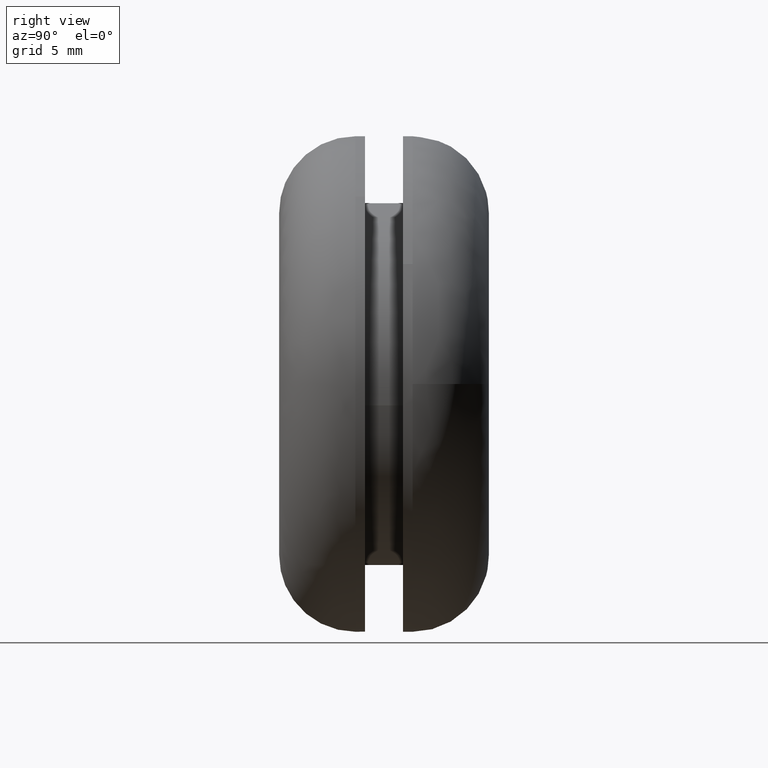
[diagram: clean part render]
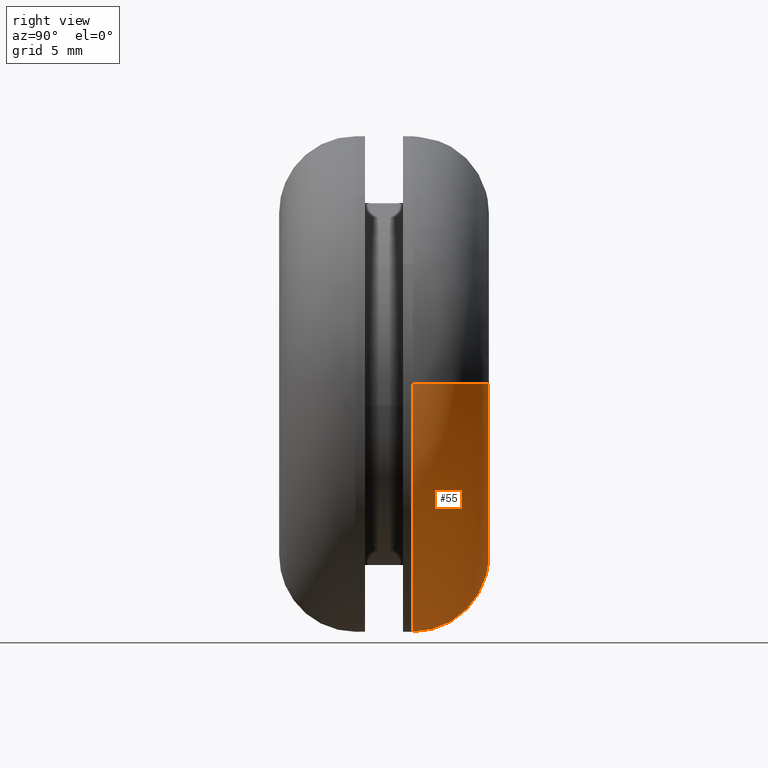
[diagram: same view with one face highlighted and labeled with its STEP entity id]
A machine part, right view. The second image highlights one B-rep face of the part: STEP entity #55.
In plain terms, the highlighted face is a freeform B-spline surface patch.
Its self-contained STEP definition (entity closure, byte-faithful):
#55=ADVANCED_FACE('',(#211),#210,.T.);
#210=( BOUNDED_SURFACE() B_SPLINE_SURFACE( 2,2,((#362,#363,#364,#365,#366),(#367,#368,#369,#370,#371),(#372,#373,#374,#375,#376),(#377,#378,#379,#380,#381),(#382,#383,#384,#385,#386)), .UNSPECIFIED.,.F.,.F.,.F.) B_SPLINE_SURFACE_WITH_KNOTS((3,2,3),(3,2,3),(-1.57079642237E+000,-1.04719691611E+000,1.90527398702E-006),(3.14159265359E+000,4.71238898038E+000,6.28318530718E+000), .UNSPECIFIED. ) GEOMETRIC_REPRESENTATION_ITEM() RATIONAL_B_SPLINE_SURFACE(((9.33012543119E-001,6.59739496172E-001,9.33012543119E-001,6.59739496172E-001,9.33012543119E-001),(9.33012530892E-001,6.59739487526E-001,9.33012530892E-001,6.59739487526E-001,9.33012530892E-001),(1.00000000000E+000,7.07106781187E-001,1.00000000000E+000,7.07106781187E-001,1.00000000000E+000),(8.66025086239E-001,6.12372211157E-001,8.66025086239E-001,6.12372211157E-001,8.66025086239E-001),(1.00000000000E+000,7.07106781187E-001,1.00000000000E+000,7.07106781187E-001,1.00000000000E+000))) REPRESENTATION_ITEM('') SURFACE() );
#211=FACE_OUTER_BOUND('',#387,.T.);
#362=CARTESIAN_POINT('',(8.99999960873E+000,1.10000000000E+001,3.54517891140E-014));
#363=CARTESIAN_POINT('',(8.99999960873E+000,1.10000000000E+001,-8.99999960874E+000));
#364=CARTESIAN_POINT('',(-3.04376705690E-012,1.10000000000E+001,-8.99999960874E+000));
#365=CARTESIAN_POINT('',(-8.99999960874E+000,1.10000000000E+001,-8.99999960874E+000));
#366=CARTESIAN_POINT('',(-8.99999960874E+000,1.10000000000E+001,3.76560804550E-014));
#367=CARTESIAN_POINT('',(1.00717979495E+001,1.10000001048E+001,3.53205328628E-014));
#368=CARTESIAN_POINT('',(1.00717979495E+001,1.10000001048E+001,-1.00717979495E+001));
#369=CARTESIAN_POINT('',(-3.04389823367E-012,1.10000001048E+001,-1.00717979495E+001));
#370=CARTESIAN_POINT('',(-1.00717979495E+001,1.10000001049E+001,-1.00717979495E+001));
#371=CARTESIAN_POINT('',(-1.00717979495E+001,1.10000001049E+001,3.77873304155E-014));
#372=CARTESIAN_POINT('',(1.10000022000E+001,1.04641003450E+001,5.12845081510E-014));
#373=CARTESIAN_POINT('',(1.10000022000E+001,1.04641003450E+001,-1.10000022000E+001));
#374=CARTESIAN_POINT('',(-3.43423277605E-012,1.04641003450E+001,-1.10000022000E+001));
#375=CARTESIAN_POINT('',(-1.10000022000E+001,1.04641003450E+001,-1.10000022000E+001));
#376=CARTESIAN_POINT('',(-1.10000022000E+001,1.04641003450E+001,5.39786426682E-014));
#377=CARTESIAN_POINT('',(1.30000044000E+001,9.30939684281E+000,8.56820943287E-014));
#378=CARTESIAN_POINT('',(1.30000044000E+001,9.30939684281E+000,-1.30000044000E+001));
#379=CARTESIAN_POINT('',(-4.27528682540E-012,9.30939684282E+000,-1.30000044000E+001));
#380=CARTESIAN_POINT('',(-1.30000044001E+001,9.30939684283E+000,-1.30000044000E+001));
#381=CARTESIAN_POINT('',(-1.30000044001E+001,9.30939684283E+000,8.88660719263E-014));
#382=CARTESIAN_POINT('',(1.30000000000E+001,6.99999237890E+000,1.54967034089E-013));
#383=CARTESIAN_POINT('',(1.30000000000E+001,6.99999237890E+000,-1.30000000000E+001));
#384=CARTESIAN_POINT('',(-5.95690323067E-012,6.99999237891E+000,-1.30000000000E+001));
#385=CARTESIAN_POINT('',(-1.30000000000E+001,6.99999237892E+000,-1.30000000000E+001));
#386=CARTESIAN_POINT('',(-1.30000000000E+001,6.99999237892E+000,1.58151010609E-013));
#387=EDGE_LOOP('',(#478,#479,#480,#481,#482,#483,#484,#485));
#478=ORIENTED_EDGE('',*,*,#529,.F.);
#479=ORIENTED_EDGE('',*,*,#528,.F.);
#480=ORIENTED_EDGE('',*,*,#527,.F.);
#481=ORIENTED_EDGE('',*,*,#524,.F.);
#482=ORIENTED_EDGE('',*,*,#533,.F.);
#483=ORIENTED_EDGE('',*,*,#498,.T.);
#484=ORIENTED_EDGE('',*,*,#500,.T.);
#485=ORIENTED_EDGE('',*,*,#534,.T.);
#498=EDGE_CURVE('',#619,#620,#621,.T.);
#500=EDGE_CURVE('',#620,#627,#634,.T.);
#524=EDGE_CURVE('',#789,#796,#797,.T.);
#527=EDGE_CURVE('',#796,#815,#816,.T.);
#528=EDGE_CURVE('',#815,#822,#823,.T.);
#529=EDGE_CURVE('',#822,#829,#830,.T.);
#533=EDGE_CURVE('',#619,#789,#854,.T.);
#534=EDGE_CURVE('',#627,#829,#860,.T.);
#619=VERTEX_POINT('',#926);
#620=VERTEX_POINT('',#927);
#621=CIRCLE('',#931,9.00000000025E+000);
#627=VERTEX_POINT('',#932);
#634=CIRCLE('',#940,9.00000000025E+000);
#789=VERTEX_POINT('',#1034);
#796=VERTEX_POINT('',#1039);
#797=CIRCLE('',#1043,1.30000000000E+001);
#815=VERTEX_POINT('',#1048);
#816=CIRCLE('',#1052,1.30000000000E+001);
#822=VERTEX_POINT('',#1053);
#823=CIRCLE('',#1057,1.30000000000E+001);
#829=VERTEX_POINT('',#1058);
#830=CIRCLE('',#1062,1.30000000000E+001);
#854=(BOUNDED_CURVE() B_SPLINE_CURVE(2,(#1077,#1078,#1079,#1080,#1081),.UNSPECIFIED.,.F.,.F.) B_SPLINE_CURVE_WITH_KNOTS((3,2,3),(-1.57079632679E+000,-1.04719691611E+000,1.89747074780E-006),.UNSPECIFIED.) CURVE() GEOMETRIC_REPRESENTATION_ITEM() RATIONAL_B_SPLINE_CURVE((9.33012543119E-001,9.33012543119E-001,1.00000000000E+000,8.66025086239E-001,1.00000000000E+000)) REPRESENTATION_ITEM('') );
#860=(BOUNDED_CURVE() B_SPLINE_CURVE(2,(#1082,#1083,#1084,#1085,#1086),.UNSPECIFIED.,.F.,.F.) B_SPLINE_CURVE_WITH_KNOTS((3,2,3),(-1.57079642237E+000,-1.04719691611E+000,1.90527398702E-006),.UNSPECIFIED.) CURVE() GEOMETRIC_REPRESENTATION_ITEM() RATIONAL_B_SPLINE_CURVE((9.33012543119E-001,9.33012530892E-001,1.00000000000E+000,8.66025086239E-001,1.00000000000E+000)) REPRESENTATION_ITEM('') );
#926=CARTESIAN_POINT('',(-9.00000000036E+000,1.10000000000E+001,-1.36443991703E-007));
#927=CARTESIAN_POINT('',(-3.44169137634E-015,1.10000000000E+001,-9.00000000050E+000));
#928=CARTESIAN_POINT('',(-1.09510622792E-010,1.10000000000E+001,-2.50004461577E-010));
#929=DIRECTION('',(1.42053589740E-015,-1.00000000000E+000,1.46606082849E-014));
#930=DIRECTION('',(1.21678223053E-011,-1.46606082848E-014,-1.00000000000E+000));
#931=AXIS2_PLACEMENT_3D('',#928,#929,#930);
#932=CARTESIAN_POINT('',(9.00000000014E+000,1.10000000000E+001,4.52209959531E-008));
#937=CARTESIAN_POINT('',(-1.09510622792E-010,1.10000000000E+001,-2.50004461577E-010));
#938=DIRECTION('',(1.42053589740E-015,-1.00000000000E+000,1.46606082849E-014));
#939=DIRECTION('',(1.21678223053E-011,-1.46606082848E-014,-1.00000000000E+000));
#940=AXIS2_PLACEMENT_3D('',#937,#938,#939);
#1034=CARTESIAN_POINT('',(-1.30000000000E+001,6.99999242653E+000,2.78958404841E-011));
#1039=CARTESIAN_POINT('',(-1.13743035568E+001,6.99999474223E+000,-6.29485651930E+000));
#1040=CARTESIAN_POINT('',(3.75166564481E-012,6.99999618947E+000,-1.35074174068E-011));
#1041=DIRECTION('',(2.89457352172E-007,-1.00000000000E+000,-2.93117615375E-007));
#1042=DIRECTION('',(9.99921052610E-001,2.93117631842E-007,-1.25653709631E-002));
#1043=AXIS2_PLACEMENT_3D('',#1040,#1041,#1042);
#1048=CARTESIAN_POINT('',(0.00000000000E+000,7.00000000000E+000,-1.30000000000E+001));
#1049=CARTESIAN_POINT('',(3.75166564481E-012,6.99999618947E+000,-1.35074174068E-011));
#1050=DIRECTION('',(2.89457352172E-007,-1.00000000000E+000,-2.93117615375E-007));
#1051=DIRECTION('',(9.99921052610E-001,2.93117631842E-007,-1.25653709631E-002));
#1052=AXIS2_PLACEMENT_3D('',#1049,#1050,#1051);
#1053=CARTESIAN_POINT('',(1.29683537839E+001,6.99999242217E+000,-9.06531927606E-001));
#1054=CARTESIAN_POINT('',(-4.17443857259E-012,6.99999621109E+000,-1.09574571638E-011));
#1055=DIRECTION('',(-3.12539883493E-007,-1.00000000000E+000,-2.91454965803E-007));
#1056=DIRECTION('',(-3.21110659430E-013,-2.91454965803E-007,1.00000000000E+000));
#1057=AXIS2_PLACEMENT_3D('',#1054,#1055,#1056);
#1058=CARTESIAN_POINT('',(1.30000000000E+001,6.99999267779E+000,8.67110407755E-006));
#1059=CARTESIAN_POINT('',(-1.03383968053E-012,6.99999621109E+000,7.41273709082E-012));
#1060=DIRECTION('',(-2.71792501910E-007,-1.00000000000E+000,2.91454693292E-007));
#1061=DIRECTION('',(-8.74946516990E-001,9.66758364986E-008,-4.84219570451E-001));
#1062=AXIS2_PLACEMENT_3D('',#1059,#1060,#1061);
#1077=CARTESIAN_POINT('',(-9.00000000001E+000,1.10000000000E+001,3.76560805030E-014));
#1078=CARTESIAN_POINT('',(-1.00717981311E+001,1.10000000000E+001,3.77873335831E-014));
#1079=CARTESIAN_POINT('',(-1.10000022000E+001,1.04641003450E+001,5.39786426682E-014));
#1080=CARTESIAN_POINT('',(-1.30000044001E+001,9.30939684283E+000,8.88660719263E-014));
#1081=CARTESIAN_POINT('',(-1.30000000000E+001,6.99999237892E+000,1.58151010609E-013));
#1082=CARTESIAN_POINT('',(8.99999960873E+000,1.10000000000E+001,3.54517891140E-014));
#1083=CARTESIAN_POINT('',(1.00717979495E+001,1.10000001048E+001,3.53205328628E-014));
#1084=CARTESIAN_POINT('',(1.10000022000E+001,1.04641003450E+001,5.12845081510E-014));
#1085=CARTESIAN_POINT('',(1.30000044000E+001,9.30939684281E+000,8.56820943287E-014));
#1086=CARTESIAN_POINT('',(1.30000000000E+001,6.99999237890E+000,1.54967034089E-013));